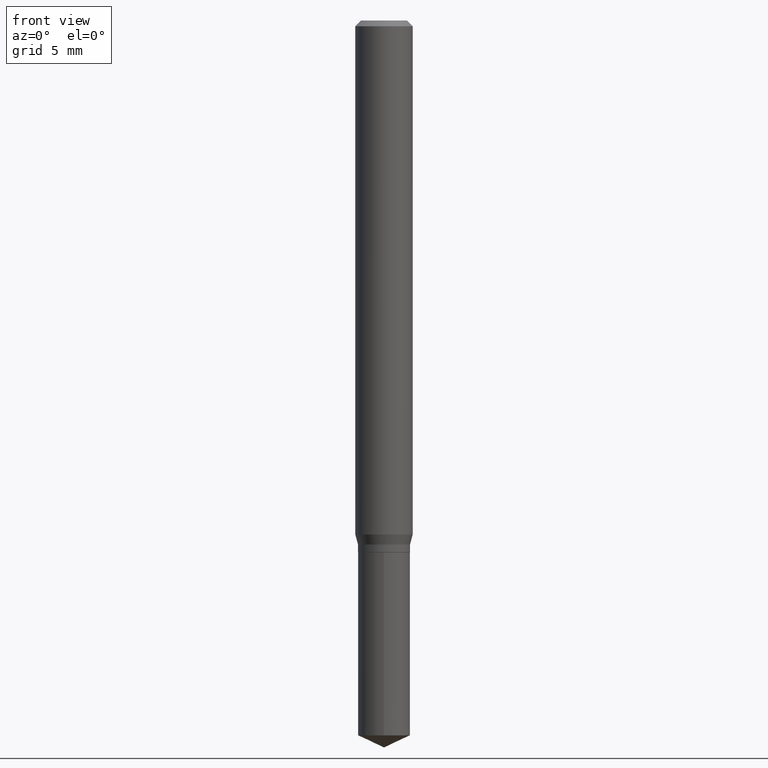
[diagram: clean part render]
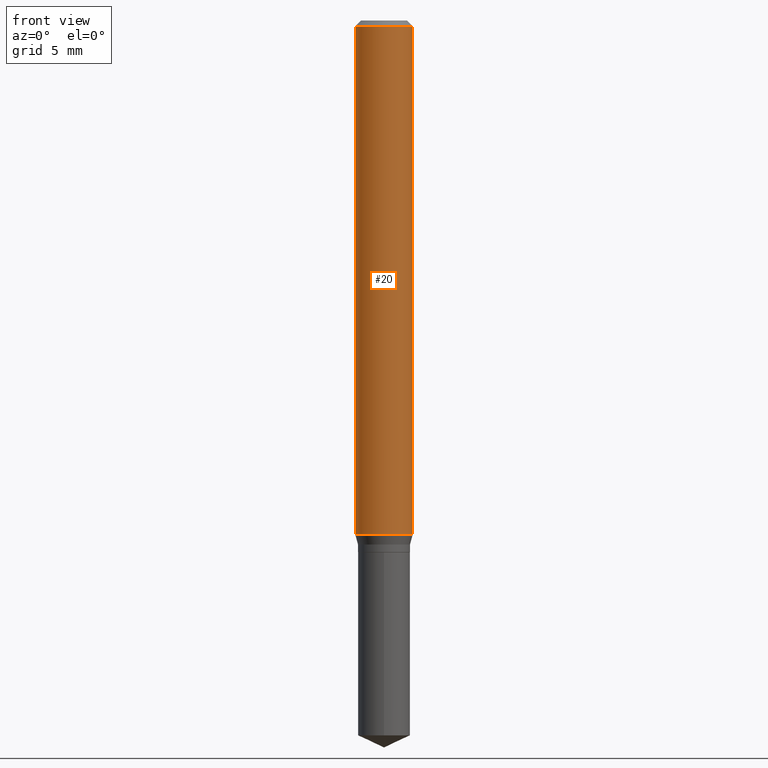
[diagram: same view with one face highlighted and labeled with its STEP entity id]
A machine part, front view. The second image highlights one B-rep face of the part: STEP entity #20.
In plain terms, the highlighted cylindrical surface (edge-blend (fillet) strip) has radius 1.4999 mm, axis along (-0, 0, 1).
Its self-contained STEP definition (entity closure, byte-faithful):
#20 = ADVANCED_FACE ( 'NONE', ( #43 ), #114, .T. ) ;
#22 = AXIS2_PLACEMENT_3D ( 'NONE', #85, #80, #52 ) ;
#28 = EDGE_CURVE ( 'NONE', #97, #208, #337, .T. ) ;
#43 = FACE_OUTER_BOUND ( 'NONE', #297, .T. ) ;
#52 = DIRECTION ( 'NONE',  ( 1.000000000000000000, -6.982962677686266711E-15, 0.000000000000000000 ) ) ;
#60 = VECTOR ( 'NONE', #183, 39.37007874015748143 ) ;
#61 = ORIENTED_EDGE ( 'NONE', *, *, #28, .F. ) ;
#80 = DIRECTION ( 'NONE',  ( -2.445468806185136597E-29, 3.491481338843145583E-15, 1.000000000000000000 ) ) ;
#85 = CARTESIAN_POINT ( 'NONE',  ( 2.888098660104664204E-31, -4.123439461173780263E-17, -0.01181000000000007218 ) ) ;
#87 = DIRECTION ( 'NONE',  ( -2.445468806185136597E-29, 3.491481338843145583E-15, 1.000000000000000000 ) ) ;
#97 = VERTEX_POINT ( 'NONE', #148 ) ;
#102 = ORIENTED_EDGE ( 'NONE', *, *, #399, .T. ) ;
#111 = DIRECTION ( 'NONE',  ( -2.445468806185136597E-29, 3.491481338843145583E-15, 1.000000000000000000 ) ) ;
#114 = CYLINDRICAL_SURFACE ( 'NONE', #248, 0.05905000000000006771 ) ;
#131 = VERTEX_POINT ( 'NONE', #154 ) ;
#148 = CARTESIAN_POINT ( 'NONE',  ( -0.05905000000000013016, -3.273970868715779481E-15, -1.057873720558370589 ) ) ;
#154 = CARTESIAN_POINT ( 'NONE',  ( 0.05905000000000013016, -4.105890300299494288E-15, -1.057873720558370589 ) ) ;
#162 = CARTESIAN_POINT ( 'NONE',  ( 2.586997184508507424E-29, -3.693546354182119368E-15, -1.057873720558370589 ) ) ;
#183 = DIRECTION ( 'NONE',  ( -2.445468806185136877E-29, 3.491481338843145188E-15, 1.000000000000000000 ) ) ;
#185 = CARTESIAN_POINT ( 'NONE',  ( 0.000000000000000000, 0.000000000000000000, 0.000000000000000000 ) ) ;
#198 = LINE ( 'NONE', #319, #386 ) ;
#204 = ORIENTED_EDGE ( 'NONE', *, *, #424, .T. ) ;
#205 = AXIS2_PLACEMENT_3D ( 'NONE', #162, #87, #465 ) ;
#208 = VERTEX_POINT ( 'NONE', #431 ) ;
#221 = DIRECTION ( 'NONE',  ( 1.000000000000000000, -6.982962677686266711E-15, 4.876176775795936353E-29 ) ) ;
#232 = CIRCLE ( 'NONE', #22, 0.05904999999999999832 ) ;
#233 = CARTESIAN_POINT ( 'NONE',  ( 0.05904999999999999832, -4.535783407291118600E-16, -0.01181000000000007218 ) ) ;
#248 = AXIS2_PLACEMENT_3D ( 'NONE', #185, #111, #221 ) ;
#297 = EDGE_LOOP ( 'NONE', ( #61, #102, #204, #415 ) ) ;
#319 = CARTESIAN_POINT ( 'NONE',  ( 0.05905000000000006771, -4.123439461173745257E-16, 2.879382386107503723E-30 ) ) ;
#337 = LINE ( 'NONE', #376, #60 ) ;
#340 = EDGE_CURVE ( 'NONE', #208, #381, #232, .T. ) ;
#376 = CARTESIAN_POINT ( 'NONE',  ( -0.05905000000000006771, 4.195754854663396409E-16, -2.904631170795525045E-30 ) ) ;
#381 = VERTEX_POINT ( 'NONE', #233 ) ;
#386 = VECTOR ( 'NONE', #387, 39.37007874015748143 ) ;
#387 = DIRECTION ( 'NONE',  ( -2.445468806185136877E-29, 3.491481338843145188E-15, 1.000000000000000000 ) ) ;
#399 = EDGE_CURVE ( 'NONE', #97, #131, #451, .T. ) ;
#415 = ORIENTED_EDGE ( 'NONE', *, *, #340, .F. ) ;
#424 = EDGE_CURVE ( 'NONE', #131, #381, #198, .T. ) ;
#431 = CARTESIAN_POINT ( 'NONE',  ( -0.05904999999999999832, -1.447814888930588267E-15, -0.01181000000000007218 ) ) ;
#451 = CIRCLE ( 'NONE', #205, 0.05905000000000013016 ) ;
#465 = DIRECTION ( 'NONE',  ( 1.000000000000000000, -6.982962677686265133E-15, 0.000000000000000000 ) ) ;